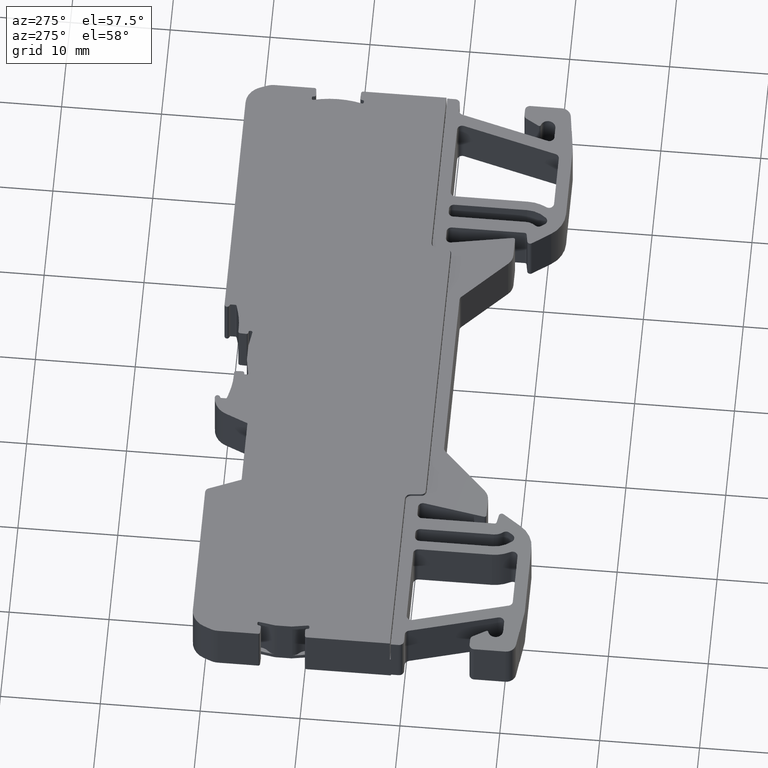
[diagram: clean part render]
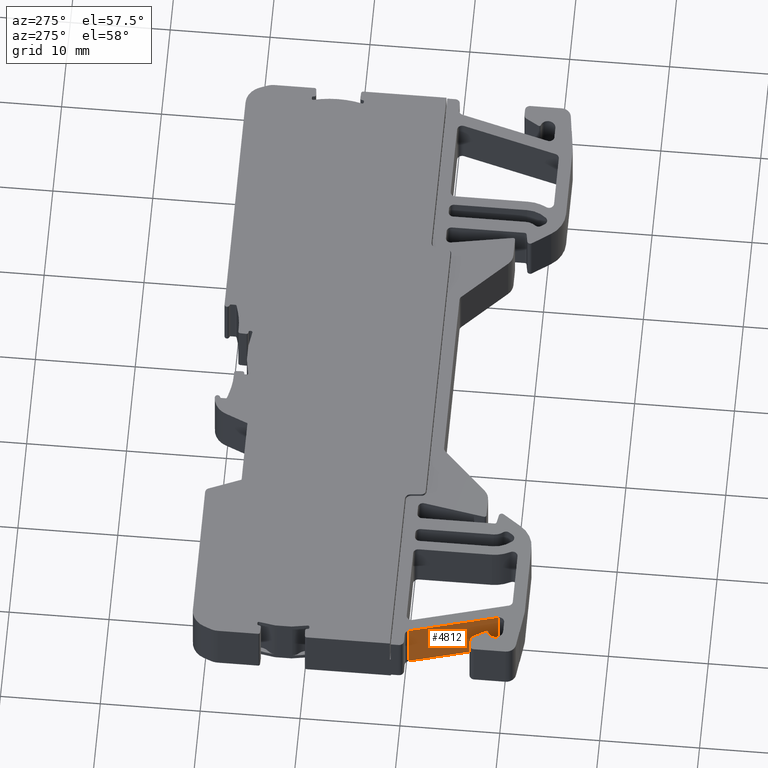
[diagram: same view with one face highlighted and labeled with its STEP entity id]
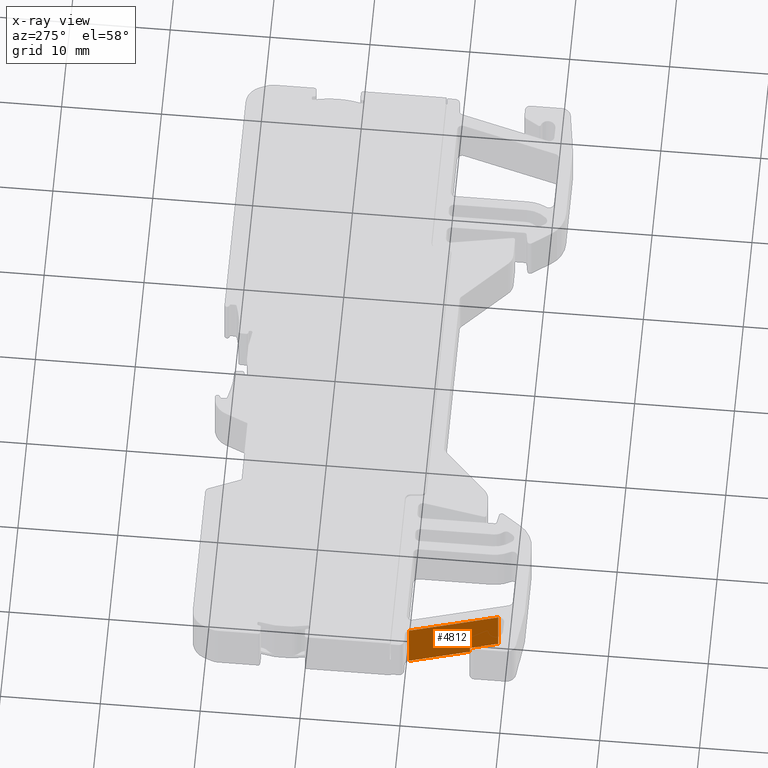
[diagram: x-ray of the same camera — body ghosted, the highlighted face saturated]
A machine part, auxiliary view. The second image highlights one B-rep face of the part: STEP entity #4812.
The next image is the same camera in x-ray: the body ghosted, the highlighted face saturated — about 0% of this face is hidden behind the body in this view.
In plain terms, the highlighted planar face has unit normal (-0.9659, -0.2588, 0).
Its self-contained STEP definition (entity closure, byte-faithful):
#548 = VECTOR ( 'NONE', #2388, 1000.000000000000100 ) ;
#889 = VECTOR ( 'NONE', #2609, 1000.000000000000000 ) ;
#956 = VECTOR ( 'NONE', #1343, 1000.000000000000100 ) ;
#1087 = VECTOR ( 'NONE', #1540, 1000.000000000000000 ) ;
#1182 = VECTOR ( 'NONE', #1919, 1000.000000000000100 ) ;
#1214 = VECTOR ( 'NONE', #1940, 1000.000000000000000 ) ;
#1343 = DIRECTION ( 'NONE',  ( 0.2587858438378640200, -0.9659347219295538700, -0.0000000000000000000 ) ) ;
#1360 = CARTESIAN_POINT ( 'NONE',  ( -33.25139521760932100, -109.5865679288761100, 0.1000000000000000100 ) ) ;
#1379 = LINE ( 'NONE', #1360, #956 ) ;
#1495 = CARTESIAN_POINT ( 'NONE',  ( -33.06327668779853500, -110.2887323791712400, 5.700000000000000200 ) ) ;
#1540 = DIRECTION ( 'NONE',  ( 0.0000000000000000000, 0.0000000000000000000, -1.000000000000000000 ) ) ;
#1542 = LINE ( 'NONE', #1495, #1087 ) ;
#1896 = LINE ( 'NONE', #1917, #1182 ) ;
#1917 = CARTESIAN_POINT ( 'NONE',  ( -31.58386468547828200, -115.8107323459691900, 0.8000000000000000400 ) ) ;
#1919 = DIRECTION ( 'NONE',  ( 0.2587858438378640200, -0.9659347219295538700, -0.0000000000000000000 ) ) ;
#1940 = DIRECTION ( 'NONE',  ( 0.0000000000000000000, 0.0000000000000000000, -1.000000000000000000 ) ) ;
#1948 = LINE ( 'NONE', #1962, #1214 ) ;
#1962 = CARTESIAN_POINT ( 'NONE',  ( -30.72080249419758500, -119.0321672026026400, 5.700000000000000200 ) ) ;
#2316 = CARTESIAN_POINT ( 'NONE',  ( -33.25139521760933500, -109.5865679288760400, 5.700000000000000200 ) ) ;
#2353 = LINE ( 'NONE', #2316, #548 ) ;
#2388 = DIRECTION ( 'NONE',  ( 0.2587858438378640200, -0.9659347219295538700, 0.0000000000000000000 ) ) ;
#2608 = CARTESIAN_POINT ( 'NONE',  ( -31.46011022718383300, -116.2726537806480600, 0.8000000000000000400 ) ) ;
#2609 = DIRECTION ( 'NONE',  ( -0.0000000000000000000, -0.0000000000000000000, 1.000000000000000000 ) ) ;
#2622 = LINE ( 'NONE', #2608, #889 ) ;
#3932 = VERTEX_POINT ( 'NONE', #7588 ) ;
#4812 = ADVANCED_FACE ( 'NONE', ( #10707 ), #10692, .T. ) ;
#6644 = ORIENTED_EDGE ( 'NONE', *, *, #9375, .T. ) ;
#6648 = ORIENTED_EDGE ( 'NONE', *, *, #9746, .T. ) ;
#6649 = ORIENTED_EDGE ( 'NONE', *, *, #9655, .T. ) ;
#6651 = ORIENTED_EDGE ( 'NONE', *, *, #9383, .F. ) ;
#6652 = ORIENTED_EDGE ( 'NONE', *, *, #9286, .T. ) ;
#6672 = ORIENTED_EDGE ( 'NONE', *, *, #10019, .F. ) ;
#6906 = VERTEX_POINT ( 'NONE', #11346 ) ;
#6930 = VERTEX_POINT ( 'NONE', #11333 ) ;
#7056 = VERTEX_POINT ( 'NONE', #12388 ) ;
#7148 = VERTEX_POINT ( 'NONE', #12496 ) ;
#7167 = VERTEX_POINT ( 'NONE', #11597 ) ;
#7588 = CARTESIAN_POINT ( 'NONE',  ( -30.72080249419760600, -119.0321672026026500, 0.8000000000000006000 ) ) ;
#9286 = EDGE_CURVE ( 'NONE', #7148, #7056, #1542, .T. ) ;
#9375 = EDGE_CURVE ( 'NONE', #6906, #3932, #1896, .T. ) ;
#9383 = EDGE_CURVE ( 'NONE', #7167, #3932, #1948, .T. ) ;
#9655 = EDGE_CURVE ( 'NONE', #6930, #6906, #2622, .T. ) ;
#9746 = EDGE_CURVE ( 'NONE', #7056, #6930, #1379, .T. ) ;
#10019 = EDGE_CURVE ( 'NONE', #7148, #7167, #2353, .T. ) ;
#10430 = AXIS2_PLACEMENT_3D ( 'NONE', #10728, #10688, #10684 ) ;
#10684 = DIRECTION ( 'NONE',  ( 0.2587858438378640200, -0.9659347219295538700, 0.0000000000000000000 ) ) ;
#10688 = DIRECTION ( 'NONE',  ( -0.9659347219295539900, -0.2587858438378640700, 0.0000000000000000000 ) ) ;
#10692 = PLANE ( 'NONE',  #10430 ) ;
#10707 = FACE_OUTER_BOUND ( 'NONE', #14454, .T. ) ;
#10728 = CARTESIAN_POINT ( 'NONE',  ( -33.25139521760933500, -109.5865679288760400, 5.700000000000000200 ) ) ;
#11333 = CARTESIAN_POINT ( 'NONE',  ( -31.46011022718383300, -116.2726537806481400, 0.1000000000000002600 ) ) ;
#11346 = CARTESIAN_POINT ( 'NONE',  ( -31.46011022718383300, -116.2726537806480600, 0.8000000000000003800 ) ) ;
#11597 = CARTESIAN_POINT ( 'NONE',  ( -30.72080249419759900, -119.0321672026026500, 5.700000000000000200 ) ) ;
#12388 = CARTESIAN_POINT ( 'NONE',  ( -33.06327668779853500, -110.2887323791712400, 0.1000000000000002600 ) ) ;
#12496 = CARTESIAN_POINT ( 'NONE',  ( -33.06327668779853500, -110.2887323791712400, 5.700000000000000200 ) ) ;
#14454 = EDGE_LOOP ( 'NONE', ( #6649, #6644, #6651, #6672, #6652, #6648 ) ) ;